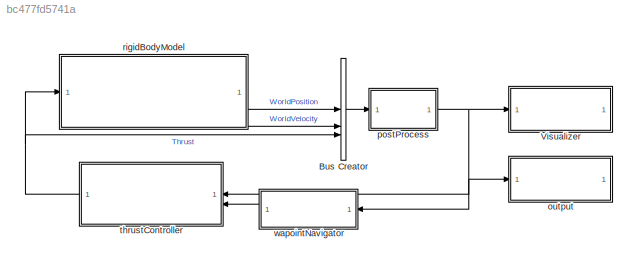
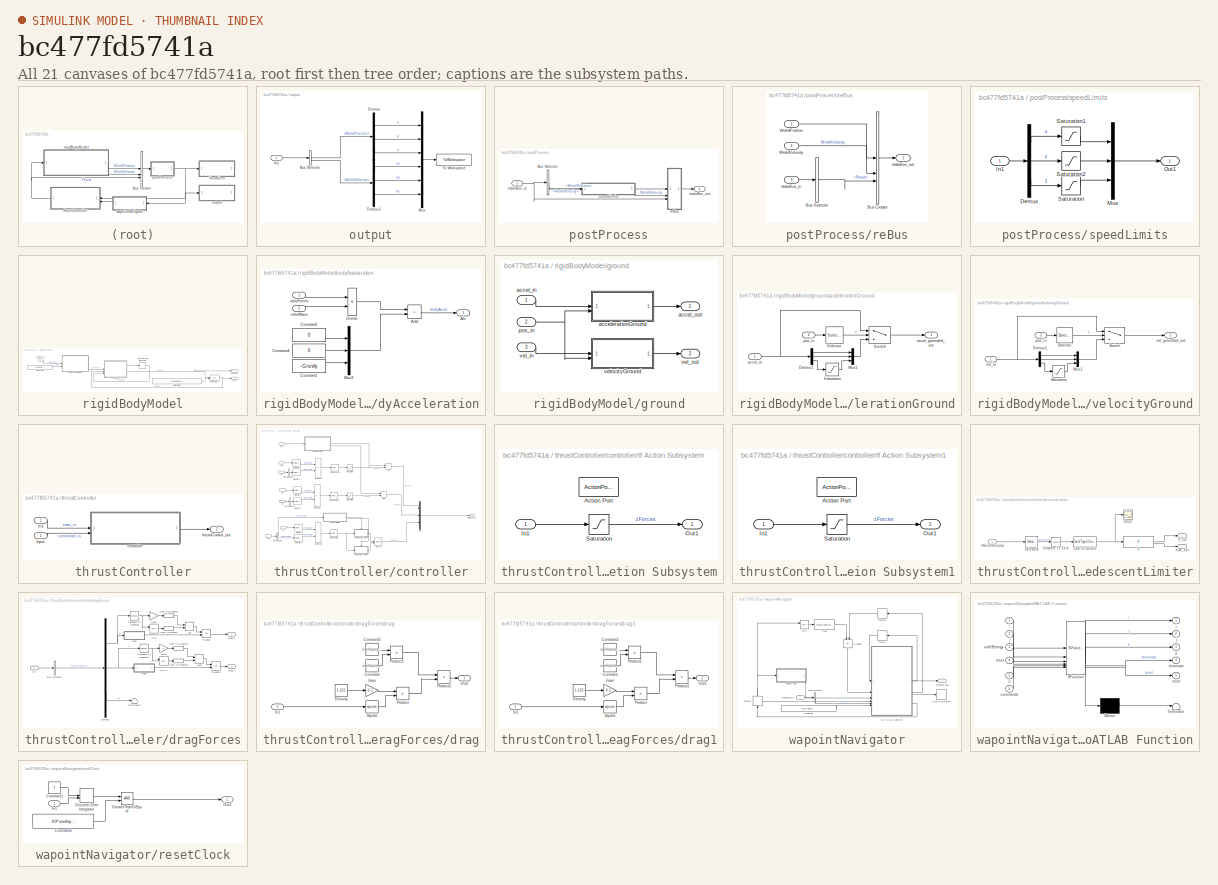
[diagram: thumbnail index - all 21 canvases of the model, root first then tree order]
MODEL slx_bc477fd5741a
KIND model
CONFIG AbsTol = auto
CONFIG EnableMultiTasking = on
CONFIG FixedStep = 0.001
CONFIG MaxStep = auto
CONFIG MinStep = auto
CONFIG PreLoadFcn = UserInputs;
CONFIG RelTol = 1e-3
CONFIG SampleTimeConstraint = Unconstrained
CONFIG SolverName = ode4
CONFIG StartTime = 0.0
CONFIG StopTime = 12000
BLOCK [BusCreator] Bus Creator
  DisplayOption = bar
  InheritFromInputs = on
  Inputs = 3
BLOCK [SubSystem] Visualizer
  ReferencedSubsystem = Visualizer
BLOCK [SubSystem] output
BLOCK [BusSelector] output/Bus Selector
  OutputSignals = WorldPosition,WorldVelocity
BLOCK [Demux] output/Demux
  Outputs = 3
BLOCK [Demux] output/Demux1
  Outputs = 3
BLOCK [Inport] output/In1
BLOCK [Mux] output/Mux
  DisplayOption = bar
  Inputs = 6
BLOCK [ToWorkspace] output/To Workspace
  FixptAsFi = on
  MaxDataPoints = inf
  SampleTime = 0.03
  VariableName = Pose
BLOCK [SubSystem] postProcess
BLOCK [BusSelector] postProcess/Bus Selector
  OutputSignals = WorldPosition,WorldVelocity
BLOCK [SubSystem] postProcess/reBus
  ShowPortLabels = none
BLOCK [BusCreator] postProcess/reBus/Bus Creator
  DisplayOption = bar
  InheritFromInputs = on
  Inputs = 3
  OutDataTypeStr = Bus: StateBus
BLOCK [BusSelector] postProcess/reBus/Bus Selector
  OutputSignals = Thrust
BLOCK [Inport] postProcess/reBus/WorldPostion
BLOCK [Inport] postProcess/reBus/WorldVelocity
  Port = 2
BLOCK [Inport] postProcess/reBus/stateBus_in
  Port = 3
BLOCK [Outport] postProcess/reBus/stateBus_out
  OutDataTypeStr = Bus: StateBus
BLOCK [SubSystem] postProcess/speedLimits
BLOCK [Demux] postProcess/speedLimits/Demux
  Outputs = 3
BLOCK [Inport] postProcess/speedLimits/In1
BLOCK [Mux] postProcess/speedLimits/Mux
  DisplayOption = bar
  Inputs = 3
BLOCK [Outport] postProcess/speedLimits/Out1
BLOCK [Saturate] postProcess/speedLimits/Saturation
  LowerLimit = -userInputs.dParams.maxClimb
  UpperLimit = userInputs.dParams.maxClimb
BLOCK [Saturate] postProcess/speedLimits/Saturation1
  LowerLimit = -inf
  UpperLimit = userInputs.dParams.vMax
BLOCK [Saturate] postProcess/speedLimits/Saturation2
  LowerLimit = -inf
  UpperLimit = userInputs.dParams.vMax
BLOCK [Inport] postProcess/stateBus_in
BLOCK [Outport] postProcess/stateBus_out
  OutDataTypeStr = Bus: StateBus
BLOCK [SubSystem] rigidBodyModel
BLOCK [DiscreteIntegrator] rigidBodyModel/Discrete-Time Integrator
  ICPrevOutput = DiscIntNeverNeededParam
  ICPrevScaledInput = DiscIntNeverNeededParam
  InitialConditionSetting = Auto
  SampleTime = -1
BLOCK [Inport] rigidBodyModel/F_aero (N)
BLOCK [Integrator] rigidBodyModel/Integrator3
  InitialConditionSource = external
BLOCK [Constant] rigidBodyModel/Mass (kg)
  Value = userInputs.dParams.m
BLOCK [Outport] rigidBodyModel/[vx vy vz]
  Port = 2
BLOCK [Outport] rigidBodyModel/[x y z]
BLOCK [SubSystem] rigidBodyModel/bodyAcceleration
BLOCK [Outport] rigidBodyModel/bodyAcceleration/Ab
BLOCK [Sum] rigidBodyModel/bodyAcceleration/Add
  IconShape = rectangular
BLOCK [Constant] rigidBodyModel/bodyAcceleration/Constant1
  Value = -Gravity
BLOCK [Constant] rigidBodyModel/bodyAcceleration/Constant3
  Value = 0
BLOCK [Constant] rigidBodyModel/bodyAcceleration/Constant4
  Value = 0
BLOCK [Product] rigidBodyModel/bodyAcceleration/Divide
  Inputs = */
BLOCK [Mux] rigidBodyModel/bodyAcceleration/Mux3
  DisplayOption = bar
  Inputs = 3
BLOCK [Inport] rigidBodyModel/bodyAcceleration/aeroForces
BLOCK [Inport] rigidBodyModel/bodyAcceleration/mfwfMass
  Port = 2
BLOCK [SubSystem] rigidBodyModel/ground
BLOCK [Inport] rigidBodyModel/ground/accel_in
BLOCK [Outport] rigidBodyModel/ground/accel_out
BLOCK [SubSystem] rigidBodyModel/ground/accelerationGround
BLOCK [Demux] rigidBodyModel/ground/accelerationGround/Demux1
  Outputs = 3
BLOCK [Mux] rigidBodyModel/ground/accelerationGround/Mux1
  DisplayOption = bar
  Inputs = 3
BLOCK [Saturate] rigidBodyModel/ground/accelerationGround/Saturation
  LowerLimit = 0
  UpperLimit = inf
BLOCK [Selector] rigidBodyModel/ground/accelerationGround/Selector
  IndexOptions = Index vector (dialog)
  Indices = [3]
  InputPortWidth = 3
  OutputSizes = 1
BLOCK [Switch] rigidBodyModel/ground/accelerationGround/Switch
  Criteria = u2 > Threshold
  InputSameDT = off
  SaturateOnIntegerOverflow = off
BLOCK [Outport] rigidBodyModel/ground/accelerationGround/accel_grounded_out
BLOCK [Inport] rigidBodyModel/ground/accelerationGround/accel_in
BLOCK [Inport] rigidBodyModel/ground/accelerationGround/pos_in
  Port = 2
BLOCK [Inport] rigidBodyModel/ground/pos_in
  Port = 2
BLOCK [Inport] rigidBodyModel/ground/vel_in
  Port = 3
BLOCK [Outport] rigidBodyModel/ground/vel_out
  Port = 2
BLOCK [SubSystem] rigidBodyModel/ground/velocityGround
BLOCK [Demux] rigidBodyModel/ground/velocityGround/Demux1
  Outputs = 3
BLOCK [Mux] rigidBodyModel/ground/velocityGround/Mux1
  DisplayOption = bar
  Inputs = 3
BLOCK [Saturate] rigidBodyModel/ground/velocityGround/Saturation
  LowerLimit = 0
  UpperLimit = inf
BLOCK [Selector] rigidBodyModel/ground/velocityGround/Selector
  IndexOptions = Index vector (dialog)
  Indices = [3]
  InputPortWidth = 3
  OutputSizes = 1
BLOCK [Switch] rigidBodyModel/ground/velocityGround/Switch
  Criteria = u2 > Threshold
  InputSameDT = off
  SaturateOnIntegerOverflow = off
BLOCK [Inport] rigidBodyModel/ground/velocityGround/pos_in
  Port = 2
BLOCK [Outport] rigidBodyModel/ground/velocityGround/vel_grounded_out
BLOCK [Inport] rigidBodyModel/ground/velocityGround/vel_in
BLOCK [Constant] rigidBodyModel/initialPosition
  Value = transpose(userInputs.commands.wpt_3D(1,:))
BLOCK [SubSystem] thrustController
BLOCK [Inport] thrustController/In1
  OutDataTypeStr = Bus: StateBus
BLOCK [Inport] thrustController/Input
  Port = 2
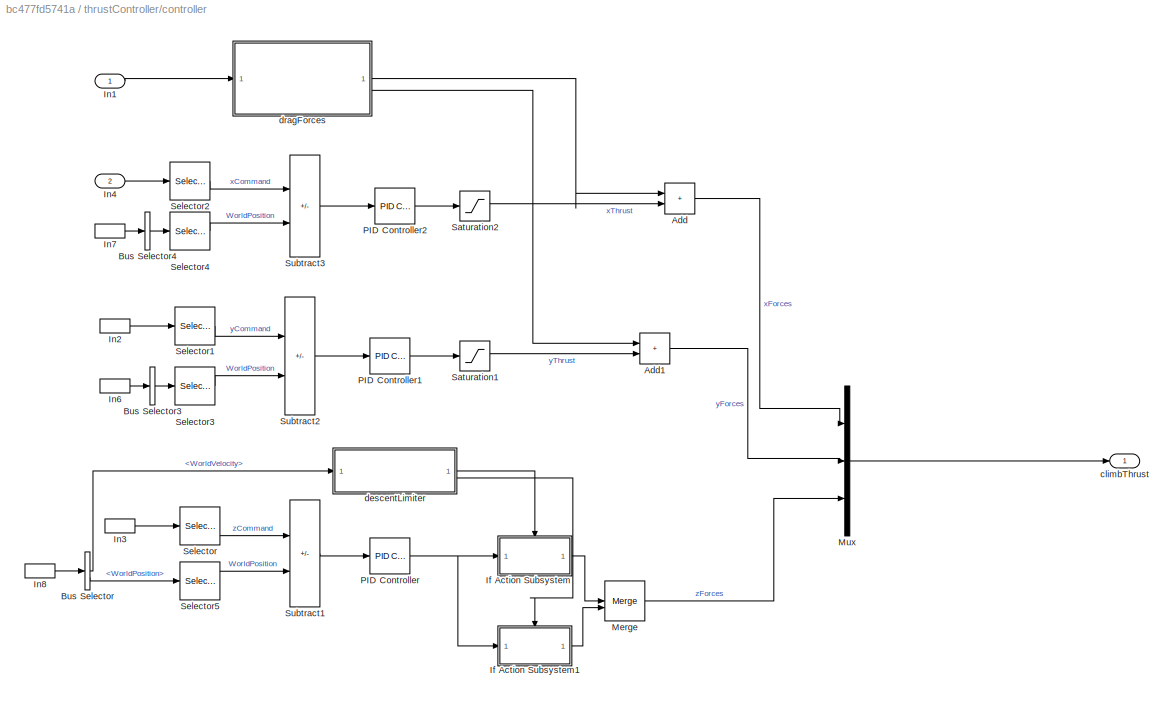
BLOCK [SubSystem] thrustController/controller
BLOCK [Sum] thrustController/controller/Add
  IconShape = rectangular
BLOCK [Sum] thrustController/controller/Add1
  IconShape = rectangular
BLOCK [BusSelector] thrustController/controller/Bus Selector
  OutputSignals = WorldVelocity,WorldPosition
BLOCK [BusSelector] thrustController/controller/Bus Selector3
  OutputAsBus = on
  OutputSignals = WorldPosition
BLOCK [BusSelector] thrustController/controller/Bus Selector4
  OutputAsBus = on
  OutputSignals = WorldPosition
BLOCK [SubSystem] thrustController/controller/If Action Subsystem
  TreatAsAtomicUnit = on
BLOCK [ActionPort] thrustController/controller/If Action Subsystem/Action Port
  ActionPortLabel = else
BLOCK [Inport] thrustController/controller/If Action Subsystem/In1
BLOCK [Outport] thrustController/controller/If Action Subsystem/Out1
BLOCK [Saturate] thrustController/controller/If Action Subsystem/Saturation
  LowerLimit = -userInputs.dParams.maxT
  UpperLimit = userInputs.dParams.maxT + Gravity* userInputs.dParams.m
BLOCK [SubSystem] thrustController/controller/If Action Subsystem1
  TreatAsAtomicUnit = on
BLOCK [ActionPort] thrustController/controller/If Action Subsystem1/Action Port
  ActionPortLabel = if(u1 > 0)
BLOCK [Inport] thrustController/controller/If Action Subsystem1/In1
BLOCK [Outport] thrustController/controller/If Action Subsystem1/Out1
BLOCK [Saturate] thrustController/controller/If Action Subsystem1/Saturation
  LowerLimit = (0.98)* ( Gravity* userInputs.dParams.m)
  UpperLimit = 10*userInputs.dParams.maxT + Gravity* userInputs.dParams.m
BLOCK [Inport] thrustController/controller/In1
BLOCK [InportShadow] thrustController/controller/In2
  Port = 2
BLOCK [InportShadow] thrustController/controller/In3
  Port = 2
BLOCK [Inport] thrustController/controller/In4
  Port = 2
BLOCK [InportShadow] thrustController/controller/In6
BLOCK [InportShadow] thrustController/controller/In7
BLOCK [InportShadow] thrustController/controller/In8
BLOCK [Merge] thrustController/controller/Merge
BLOCK [Mux] thrustController/controller/Mux
  DisplayOption = bar
  Inputs = 3
BLOCK [Reference] thrustController/controller/PID Controller  REF=slpidlib/PID Controller
  LibrarySourceBlock = simulink/Continuous/PID Controller
  SourceBlock = slpidlib/PID Controller
  SourceType = PID 1dof
BLOCK [Reference] thrustController/controller/PID Controller1  REF=slpidlib/PID Controller
  LibrarySourceBlock = simulink/Continuous/PID Controller
  SourceBlock = slpidlib/PID Controller
  SourceType = PID 1dof
BLOCK [Reference] thrustController/controller/PID Controller2  REF=slpidlib/PID Controller
  LibrarySourceBlock = simulink/Continuous/PID Controller
  SourceBlock = slpidlib/PID Controller
  SourceType = PID 1dof
BLOCK [Saturate] thrustController/controller/Saturation1
  LowerLimit = -userInputs.dParams.maxT
  UpperLimit = userInputs.dParams.maxT
BLOCK [Saturate] thrustController/controller/Saturation2
  LowerLimit = -userInputs.dParams.maxT
  UpperLimit = userInputs.dParams.maxT
BLOCK [Selector] thrustController/controller/Selector
  IndexOptions = Index vector (dialog)
  Indices = 3
  InputPortWidth = 3
  OutputSizes = 1
BLOCK [Selector] thrustController/controller/Selector1
  IndexOptions = Index vector (dialog)
  Indices = 2
  InputPortWidth = 3
  OutputSizes = 1
BLOCK [Selector] thrustController/controller/Selector2
  IndexOptions = Index vector (dialog)
  Indices = 1
  InputPortWidth = 3
  OutputSizes = 1
BLOCK [Selector] thrustController/controller/Selector3
  IndexOptions = Index vector (dialog)
  Indices = 2
  InputPortWidth = 3
  OutputSizes = 1
BLOCK [Selector] thrustController/controller/Selector4
  IndexOptions = Index vector (dialog)
  Indices = 1
  InputPortWidth = 3
  OutputSizes = 1
BLOCK [Selector] thrustController/controller/Selector5
  IndexOptions = Index vector (dialog)
  Indices = 3
  InputPortWidth = 3
  OutputSizes = 1
BLOCK [Sum] thrustController/controller/Subtract1
  IconShape = rectangular
  Inputs = +-
BLOCK [Sum] thrustController/controller/Subtract2
  IconShape = rectangular
  Inputs = +-
BLOCK [Sum] thrustController/controller/Subtract3
  IconShape = rectangular
  Inputs = +-
BLOCK [Outport] thrustController/controller/climbThrust
BLOCK [SubSystem] thrustController/controller/descentLimiter
BLOCK [Inport] thrustController/controller/descentLimiter/<WorldVelocity>
BLOCK [DataTypeConversion] thrustController/controller/descentLimiter/Cast To Double
  OutDataTypeStr = double
  RndMeth = Floor
  SaturateOnIntegerOverflow = off
BLOCK [Reference] thrustController/controller/descentLimiter/Compare To Zero  REF=simulink/Logic and Bit
Operations/Compare
To Zero
  SourceBlock = simulink/Logic and Bit\nOperations/Compare\nTo Zero
  SourceType = Compare To Zero
BLOCK [If] thrustController/controller/descentLimiter/If
BLOCK [Scope] thrustController/controller/descentLimiter/Scope
  Floating = off
  NumInputPorts = 1
  ScopeSpecificationString = Simulink.scopes.TimeScopeBlockCfg('CurrentConfiguration', extmgr.ConfigurationSet(extmgr.Configuration('Core','General UI',true),extmgr.Configuration('Core','Source UI',true),extmgr.Configuration('Sources','WiredSimulink',true,'DataLoggingVariableName','ScopeData6'),extmgr.Configuration('Visuals','Time Domain',true,'SerializedDisplays',{struct('MinYLimReal','-0.125','MaxYLimReal','1.125','YLabelRe...<+1386ch>
BLOCK [Selector] thrustController/controller/descentLimiter/Selector6
  IndexOptions = Index vector (dialog)
  Indices = 3
  InputPortWidth = 3
  OutputSizes = 1
BLOCK [Outport] thrustController/controller/descentLimiter/else_out
BLOCK [Outport] thrustController/controller/descentLimiter/if_out
  Port = 2
BLOCK [SubSystem] thrustController/controller/dragForces
BLOCK [Sum] thrustController/controller/dragForces/Add
  IconShape = rectangular
BLOCK [Sum] thrustController/controller/dragForces/Add1
  IconShape = rectangular
BLOCK [BusSelector] thrustController/controller/dragForces/Bus Selector2
  OutputSignals = WorldVelocity
BLOCK [DataTypeConversion] thrustController/controller/dragForces/Cast To Double
  OutDataTypeStr = double
  RndMeth = Floor
  SaturateOnIntegerOverflow = off
BLOCK [DataTypeConversion] thrustController/controller/dragForces/Cast To Double1
  OutDataTypeStr = double
  RndMeth = Floor
  SaturateOnIntegerOverflow = off
BLOCK [DataTypeConversion] thrustController/controller/dragForces/Cast To Double2
  OutDataTypeStr = double
  RndMeth = Floor
  SaturateOnIntegerOverflow = off
BLOCK [DataTypeConversion] thrustController/controller/dragForces/Cast To Double3
  OutDataTypeStr = double
  RndMeth = Floor
  SaturateOnIntegerOverflow = off
BLOCK [Reference] thrustController/controller/dragForces/Compare To Constant  REF=simulink/Logic and Bit
Operations/Compare
To Constant
  SourceBlock = simulink/Logic and Bit\nOperations/Compare\nTo Constant
  SourceType = Compare To Constant
BLOCK [Reference] thrustController/controller/dragForces/Compare To Constant1  REF=simulink/Logic and Bit
Operations/Compare
To Constant
  SourceBlock = simulink/Logic and Bit\nOperations/Compare\nTo Constant
  SourceType = Compare To Constant
BLOCK [Demux] thrustController/controller/dragForces/Demux1
  Outputs = 3
BLOCK [Gain] thrustController/controller/dragForces/Gain
  Gain = -1
BLOCK [Gain] thrustController/controller/dragForces/Gain1
  Gain = -1
BLOCK [Inport] thrustController/controller/dragForces/In1
BLOCK [Logic] thrustController/controller/dragForces/NOT
  AllPortsSameDT = off
  IconShape = distinctive
  Operator = NOT
  OutDataTypeStr = boolean
BLOCK [Logic] thrustController/controller/dragForces/NOT1
  AllPortsSameDT = off
  IconShape = distinctive
  Operator = NOT
  OutDataTypeStr = boolean
BLOCK [Product] thrustController/controller/dragForces/Product
  NameLocation = right
BLOCK [Product] thrustController/controller/dragForces/Product1
  NameLocation = right
BLOCK [Terminator] thrustController/controller/dragForces/Terminator2
BLOCK [SubSystem] thrustController/controller/dragForces/drag
BLOCK [Constant] thrustController/controller/dragForces/drag/Constant
  Value = userInputs.dParams.dragCoef
BLOCK [Constant] thrustController/controller/dragForces/drag/Constant2
  Value = userInputs.dParams.Aref
BLOCK [Constant] thrustController/controller/dragForces/drag/Density
  Value = 1.225
BLOCK [Gain] thrustController/controller/dragForces/drag/Gain
  Gain = 0.5
BLOCK [Inport] thrustController/controller/dragForces/drag/In1
BLOCK [Outport] thrustController/controller/dragForces/drag/Out1
BLOCK [Product] thrustController/controller/dragForces/drag/Product
BLOCK [Product] thrustController/controller/dragForces/drag/Product1
BLOCK [Product] thrustController/controller/dragForces/drag/Product2
BLOCK [Math] thrustController/controller/dragForces/drag/Square
  Operator = square
BLOCK [SubSystem] thrustController/controller/dragForces/drag1
BLOCK [Constant] thrustController/controller/dragForces/drag1/Constant
  Value = userInputs.dParams.dragCoef
BLOCK [Constant] thrustController/controller/dragForces/drag1/Constant2
  Value = userInputs.dParams.Aref
BLOCK [Constant] thrustController/controller/dragForces/drag1/Density
  Value = 1.225
BLOCK [Gain] thrustController/controller/dragForces/drag1/Gain
  Gain = 0.5
BLOCK [Inport] thrustController/controller/dragForces/drag1/In1
BLOCK [Outport] thrustController/controller/dragForces/drag1/Out1
BLOCK [Product] thrustController/controller/dragForces/drag1/Product
BLOCK [Product] thrustController/controller/dragForces/drag1/Product1
BLOCK [Product] thrustController/controller/dragForces/drag1/Product2
BLOCK [Math] thrustController/controller/dragForces/drag1/Square
  Operator = square
BLOCK [Outport] thrustController/controller/dragForces/drag_x
BLOCK [Outport] thrustController/controller/dragForces/drag_y
  Port = 2
BLOCK [Outport] thrustController/thrustControl_out
BLOCK [SubSystem] wapointNavigator
BLOCK [BusSelector] wapointNavigator/Bus Selector
  OutputSignals = WorldPosition
BLOCK [DataTypeConversion] wapointNavigator/Cast
  OutDataTypeStr = double
  RndMeth = Floor
  SaturateOnIntegerOverflow = off
BLOCK [Constant] wapointNavigator/Constant
  Value = userInputs.commands.wpt_3D
BLOCK [Delay] wapointNavigator/Delay
  DelayLength = 1
  InitialCondition = 2
  InputPortMap = u0
  NameLocation = top
BLOCK [Delay] wapointNavigator/Delay1
  DelayLength = 1
  InputPortMap = u0
  NameLocation = right
BLOCK [Delay] wapointNavigator/Delay2
  DelayLength = 1
  InitialCondition = 0
  InputPortMap = u0
  NameLocation = top
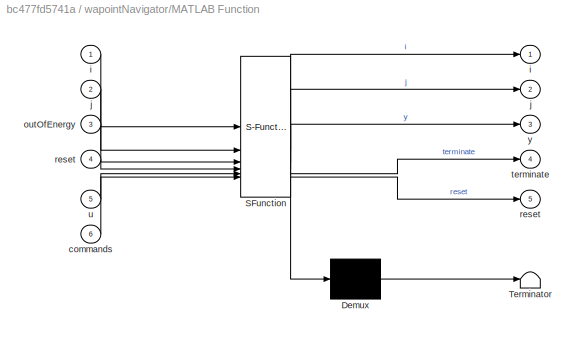
BLOCK [SubSystem] wapointNavigator/MATLAB Function
  ErrorFcn = Stateflow.Translate.translate
  PermitHierarchicalResolution = ExplicitOnly
  RTWSystemCode = Inline
  SFBlockType = MATLAB Function
  TreatAsAtomicUnit = on
BLOCK [Demux] wapointNavigator/MATLAB Function/ Demux 
  Outputs = 1
BLOCK [S-Function] wapointNavigator/MATLAB Function/ SFunction 
  EnableBusSupport = on
  FunctionName = sf_sfun
  PortCounts = [6 6]
  SFcnIsStateOwnerBlock = off
  SFunctionDeploymentMode = off
  Tag = Stateflow S-Function 3
BLOCK [Terminator] wapointNavigator/MATLAB Function/ Terminator 
BLOCK [Inport] wapointNavigator/MATLAB Function/commands
  Port = 6
BLOCK [Outport] wapointNavigator/MATLAB Function/i
BLOCK [Inport] wapointNavigator/MATLAB Function/i 
BLOCK [Outport] wapointNavigator/MATLAB Function/j
  Port = 2
BLOCK [Inport] wapointNavigator/MATLAB Function/j 
  Port = 2
BLOCK [Inport] wapointNavigator/MATLAB Function/outOfEnergy
  Port = 3
BLOCK [Outport] wapointNavigator/MATLAB Function/reset
  Port = 5
BLOCK [Inport] wapointNavigator/MATLAB Function/reset 
  Port = 4
BLOCK [Outport] wapointNavigator/MATLAB Function/terminate
  Port = 4
BLOCK [Inport] wapointNavigator/MATLAB Function/u
  Port = 5
BLOCK [Outport] wapointNavigator/MATLAB Function/y
  Port = 3
BLOCK [Logic] wapointNavigator/NOT
  AllPortsSameDT = off
  IconShape = distinctive
  Operator = NOT
  OutDataTypeStr = boolean
BLOCK [Product] wapointNavigator/Product
  NameLocation = left
BLOCK [Stop] wapointNavigator/Stop Simulation
BLOCK [SubSystem] wapointNavigator/resetClock
BLOCK [Constant] wapointNavigator/resetClock/Constant1
BLOCK [Constant] wapointNavigator/resetClock/Constant2
  Value = 0.9*userInputs.dParams.opsTime
BLOCK [DiscreteIntegrator] wapointNavigator/resetClock/Discrete-Time Integrator
  ExternalReset = rising
  ICPrevOutput = DiscIntNeverNeededParam
  ICPrevScaledInput = DiscIntNeverNeededParam
  InitialConditionSetting = Auto
  SampleTime = -1
BLOCK [RelationalOperator] wapointNavigator/resetClock/GreaterThanOrEqual
  InputSameDT = off
  OutDataTypeStr = boolean
  RndMeth = Simplest
BLOCK [Inport] wapointNavigator/resetClock/In1
BLOCK [Outport] wapointNavigator/resetClock/Out1
BLOCK [Inport] wapointNavigator/stateBus_in
  OutDataTypeStr = Bus: StateBus
BLOCK [Outport] wapointNavigator/waypoint_out
LINE Bus Creator:1 -> postProcess:1
LINE output/Bus Selector:1 -> output/Demux:1
LINE output/Bus Selector:2 -> output/Demux1:1
LINE output/Demux1:1 -> output/Mux:4
LINE output/Demux1:2 -> output/Mux:5
LINE output/Demux1:3 -> output/Mux:6
LINE output/Demux:1 -> output/Mux:1
LINE output/Demux:2 -> output/Mux:2
LINE output/Demux:3 -> output/Mux:3
LINE output/In1:1 -> output/Bus Selector:1
LINE output/Mux:1 -> output/To Workspace:1
LINE postProcess/Bus Selector:1 -> postProcess/reBus:1
LINE postProcess/Bus Selector:2 -> postProcess/speedLimits:1
LINE postProcess/reBus/Bus Creator:1 -> postProcess/reBus/stateBus_out:1
LINE postProcess/reBus/Bus Selector:1 -> postProcess/reBus/Bus Creator:3
LINE postProcess/reBus/WorldPostion:1 -> postProcess/reBus/Bus Creator:1
LINE postProcess/reBus/WorldVelocity:1 -> postProcess/reBus/Bus Creator:2
LINE postProcess/reBus/stateBus_in:1 -> postProcess/reBus/Bus Selector:1
LINE postProcess/reBus:1 -> postProcess/stateBus_out:1
LINE postProcess/speedLimits/Demux:1 -> postProcess/speedLimits/Saturation1:1
LINE postProcess/speedLimits/Demux:2 -> postProcess/speedLimits/Saturation2:1
LINE postProcess/speedLimits/Demux:3 -> postProcess/speedLimits/Saturation:1
LINE postProcess/speedLimits/In1:1 -> postProcess/speedLimits/Demux:1
LINE postProcess/speedLimits/Mux:1 -> postProcess/speedLimits/Out1:1
LINE postProcess/speedLimits/Saturation1:1 -> postProcess/speedLimits/Mux:1
LINE postProcess/speedLimits/Saturation2:1 -> postProcess/speedLimits/Mux:2
LINE postProcess/speedLimits/Saturation:1 -> postProcess/speedLimits/Mux:3
LINE postProcess/speedLimits:1 -> postProcess/reBus:2
NET postProcess/stateBus_in:1 -> postProcess/Bus Selector:1, postProcess/reBus:3
NET postProcess:1 -> Visualizer:1, output:1, thrustController:1, wapointNavigator:1
LINE rigidBodyModel/Discrete-Time Integrator:1 -> rigidBodyModel/ground:3
LINE rigidBodyModel/F_aero (N):1 -> rigidBodyModel/bodyAcceleration:1
NET rigidBodyModel/Integrator3:1 -> rigidBodyModel/[x y z]:1, rigidBodyModel/ground:2
LINE rigidBodyModel/Mass (kg):1 -> rigidBodyModel/bodyAcceleration:2
LINE rigidBodyModel/bodyAcceleration/Add:1 -> rigidBodyModel/bodyAcceleration/Ab:1
LINE rigidBodyModel/bodyAcceleration/Constant1:1 -> rigidBodyModel/bodyAcceleration/Mux3:3
LINE rigidBodyModel/bodyAcceleration/Constant3:1 -> rigidBodyModel/bodyAcceleration/Mux3:1
LINE rigidBodyModel/bodyAcceleration/Constant4:1 -> rigidBodyModel/bodyAcceleration/Mux3:2
LINE rigidBodyModel/bodyAcceleration/Divide:1 -> rigidBodyModel/bodyAcceleration/Add:1
LINE rigidBodyModel/bodyAcceleration/Mux3:1 -> rigidBodyModel/bodyAcceleration/Add:2
LINE rigidBodyModel/bodyAcceleration/aeroForces:1 -> rigidBodyModel/bodyAcceleration/Divide:1
LINE rigidBodyModel/bodyAcceleration/mfwfMass:1 -> rigidBodyModel/bodyAcceleration/Divide:2
LINE rigidBodyModel/bodyAcceleration:1 -> rigidBodyModel/ground:1
LINE rigidBodyModel/ground/accel_in:1 -> rigidBodyModel/ground/accelerationGround:1
LINE rigidBodyModel/ground/accelerationGround/Demux1:1 -> rigidBodyModel/ground/accelerationGround/Mux1:1
LINE rigidBodyModel/ground/accelerationGround/Demux1:2 -> rigidBodyModel/ground/accelerationGround/Mux1:2
LINE rigidBodyModel/ground/accelerationGround/Demux1:3 -> rigidBodyModel/ground/accelerationGround/Saturation:1
LINE rigidBodyModel/ground/accelerationGround/Mux1:1 -> rigidBodyModel/ground/accelerationGround/Switch:3
LINE rigidBodyModel/ground/accelerationGround/Saturation:1 -> rigidBodyModel/ground/accelerationGround/Mux1:3
LINE rigidBodyModel/ground/accelerationGround/Selector:1 -> rigidBodyModel/ground/accelerationGround/Switch:2
LINE rigidBodyModel/ground/accelerationGround/Switch:1 -> rigidBodyModel/ground/accelerationGround/accel_grounded_out:1
NET rigidBodyModel/ground/accelerationGround/accel_in:1 -> rigidBodyModel/ground/accelerationGround/Demux1:1, rigidBodyModel/ground/accelerationGround/Switch:1
LINE rigidBodyModel/ground/accelerationGround/pos_in:1 -> rigidBodyModel/ground/accelerationGround/Selector:1
LINE rigidBodyModel/ground/accelerationGround:1 -> rigidBodyModel/ground/accel_out:1
NET rigidBodyModel/ground/pos_in:1 -> rigidBodyModel/ground/accelerationGround:2, rigidBodyModel/ground/velocityGround:2
LINE rigidBodyModel/ground/vel_in:1 -> rigidBodyModel/ground/velocityGround:1
LINE rigidBodyModel/ground/velocityGround/Demux1:1 -> rigidBodyModel/ground/velocityGround/Mux1:1
LINE rigidBodyModel/ground/velocityGround/Demux1:2 -> rigidBodyModel/ground/velocityGround/Mux1:2
LINE rigidBodyModel/ground/velocityGround/Demux1:3 -> rigidBodyModel/ground/velocityGround/Saturation:1
LINE rigidBodyModel/ground/velocityGround/Mux1:1 -> rigidBodyModel/ground/velocityGround/Switch:3
LINE rigidBodyModel/ground/velocityGround/Saturation:1 -> rigidBodyModel/ground/velocityGround/Mux1:3
LINE rigidBodyModel/ground/velocityGround/Selector:1 -> rigidBodyModel/ground/velocityGround/Switch:2
LINE rigidBodyModel/ground/velocityGround/Switch:1 -> rigidBodyModel/ground/velocityGround/vel_grounded_out:1
LINE rigidBodyModel/ground/velocityGround/pos_in:1 -> rigidBodyModel/ground/velocityGround/Selector:1
NET rigidBodyModel/ground/velocityGround/vel_in:1 -> rigidBodyModel/ground/velocityGround/Demux1:1, rigidBodyModel/ground/velocityGround/Switch:1
LINE rigidBodyModel/ground/velocityGround:1 -> rigidBodyModel/ground/vel_out:1
LINE rigidBodyModel/ground:1 -> rigidBodyModel/Discrete-Time Integrator:1
NET rigidBodyModel/ground:2 -> rigidBodyModel/Integrator3:1, rigidBodyModel/[vx vy vz]:1
LINE rigidBodyModel/initialPosition:1 -> rigidBodyModel/Integrator3:2
LINE rigidBodyModel:1 -> Bus Creator:1
LINE rigidBodyModel:2 -> Bus Creator:2
LINE thrustController/In1:1 -> thrustController/controller:1
LINE thrustController/Input:1 -> thrustController/controller:2
LINE thrustController/controller/Add1:1 -> thrustController/controller/Mux:2
LINE thrustController/controller/Add:1 -> thrustController/controller/Mux:1
LINE thrustController/controller/Bus Selector3:1 -> thrustController/controller/Selector3:1
LINE thrustController/controller/Bus Selector4:1 -> thrustController/controller/Selector4:1
LINE thrustController/controller/Bus Selector:1 -> thrustController/controller/descentLimiter:1
LINE thrustController/controller/Bus Selector:2 -> thrustController/controller/Selector5:1
LINE thrustController/controller/If Action Subsystem/In1:1 -> thrustController/controller/If Action Subsystem/Saturation:1
LINE thrustController/controller/If Action Subsystem/Saturation:1 -> thrustController/controller/If Action Subsystem/Out1:1
LINE thrustController/controller/If Action Subsystem1/In1:1 -> thrustController/controller/If Action Subsystem1/Saturation:1
LINE thrustController/controller/If Action Subsystem1/Saturation:1 -> thrustController/controller/If Action Subsystem1/Out1:1
LINE thrustController/controller/If Action Subsystem1:1 -> thrustController/controller/Merge:2
LINE thrustController/controller/If Action Subsystem:1 -> thrustController/controller/Merge:1
LINE thrustController/controller/In1:1 -> thrustController/controller/dragForces:1
LINE thrustController/controller/In2:1 -> thrustController/controller/Selector1:1
LINE thrustController/controller/In3:1 -> thrustController/controller/Selector:1
LINE thrustController/controller/In4:1 -> thrustController/controller/Selector2:1
LINE thrustController/controller/In6:1 -> thrustController/controller/Bus Selector3:1
LINE thrustController/controller/In7:1 -> thrustController/controller/Bus Selector4:1
LINE thrustController/controller/In8:1 -> thrustController/controller/Bus Selector:1
LINE thrustController/controller/Merge:1 -> thrustController/controller/Mux:3
LINE thrustController/controller/Mux:1 -> thrustController/controller/climbThrust:1
LINE thrustController/controller/PID Controller1:1 -> thrustController/controller/Saturation1:1
LINE thrustController/controller/PID Controller2:1 -> thrustController/controller/Saturation2:1
NET thrustController/controller/PID Controller:1 -> thrustController/controller/If Action Subsystem1:1, thrustController/controller/If Action Subsystem:1
LINE thrustController/controller/Saturation1:1 -> thrustController/controller/Add1:2
LINE thrustController/controller/Saturation2:1 -> thrustController/controller/Add:2
LINE thrustController/controller/Selector1:1 -> thrustController/controller/Subtract2:1
LINE thrustController/controller/Selector2:1 -> thrustController/controller/Subtract3:1
LINE thrustController/controller/Selector3:1 -> thrustController/controller/Subtract2:2
LINE thrustController/controller/Selector4:1 -> thrustController/controller/Subtract3:2
LINE thrustController/controller/Selector5:1 -> thrustController/controller/Subtract1:2
LINE thrustController/controller/Selector:1 -> thrustController/controller/Subtract1:1
LINE thrustController/controller/Subtract1:1 -> thrustController/controller/PID Controller:1
LINE thrustController/controller/Subtract2:1 -> thrustController/controller/PID Controller1:1
LINE thrustController/controller/Subtract3:1 -> thrustController/controller/PID Controller2:1
LINE thrustController/controller/descentLimiter/<WorldVelocity>:1 -> thrustController/controller/descentLimiter/Selector6:1
NET thrustController/controller/descentLimiter/Cast To Double:1 -> thrustController/controller/descentLimiter/If:1, thrustController/controller/descentLimiter/Scope:1
LINE thrustController/controller/descentLimiter/Compare To Zero:1 -> thrustController/controller/descentLimiter/Cast To Double:1
LINE thrustController/controller/descentLimiter/If:1 -> thrustController/controller/descentLimiter/if_out:1
LINE thrustController/controller/descentLimiter/If:2 -> thrustController/controller/descentLimiter/else_out:1
LINE thrustController/controller/descentLimiter/Selector6:1 -> thrustController/controller/descentLimiter/Compare To Zero:1
LINE thrustController/controller/descentLimiter:1 -> thrustController/controller/If Action Subsystem:ifaction
LINE thrustController/controller/descentLimiter:2 -> thrustController/controller/If Action Subsystem1:ifaction
LINE thrustController/controller/dragForces/Add1:1 -> thrustController/controller/dragForces/Product1:1
LINE thrustController/controller/dragForces/Add:1 -> thrustController/controller/dragForces/Product:1
LINE thrustController/controller/dragForces/Bus Selector2:1 -> thrustController/controller/dragForces/Demux1:1
LINE thrustController/controller/dragForces/Cast To Double1:1 -> thrustController/controller/dragForces/Add:1
LINE thrustController/controller/dragForces/Cast To Double2:1 -> thrustController/controller/dragForces/Add1:2
LINE thrustController/controller/dragForces/Cast To Double3:1 -> thrustController/controller/dragForces/Add1:1
LINE thrustController/controller/dragForces/Cast To Double:1 -> thrustController/controller/dragForces/Add:2
NET thrustController/controller/dragForces/Compare To Constant1:1 -> thrustController/controller/dragForces/Gain1:1, thrustController/controller/dragForces/NOT1:1
NET thrustController/controller/dragForces/Compare To Constant:1 -> thrustController/controller/dragForces/Gain:1, thrustController/controller/dragForces/NOT:1
NET thrustController/controller/dragForces/Demux1:1 -> thrustController/controller/dragForces/Compare To Constant:1, thrustController/controller/dragForces/drag:1
NET thrustController/controller/dragForces/Demux1:2 -> thrustController/controller/dragForces/Compare To Constant1:1, thrustController/controller/dragForces/drag1:1
LINE thrustController/controller/dragForces/Demux1:3 -> thrustController/controller/dragForces/Terminator2:1
LINE thrustController/controller/dragForces/Gain1:1 -> thrustController/controller/dragForces/Cast To Double3:1
LINE thrustController/controller/dragForces/Gain:1 -> thrustController/controller/dragForces/Cast To Double1:1
LINE thrustController/controller/dragForces/In1:1 -> thrustController/controller/dragForces/Bus Selector2:1
LINE thrustController/controller/dragForces/NOT1:1 -> thrustController/controller/dragForces/Cast To Double2:1
LINE thrustController/controller/dragForces/NOT:1 -> thrustController/controller/dragForces/Cast To Double:1
LINE thrustController/controller/dragForces/Product1:1 -> thrustController/controller/dragForces/drag_y:1
LINE thrustController/controller/dragForces/Product:1 -> thrustController/controller/dragForces/drag_x:1
LINE thrustController/controller/dragForces/drag/Constant2:1 -> thrustController/controller/dragForces/drag/Product1:1
LINE thrustController/controller/dragForces/drag/Constant:1 -> thrustController/controller/dragForces/drag/Product1:2
LINE thrustController/controller/dragForces/drag/Density:1 -> thrustController/controller/dragForces/drag/Gain:1
LINE thrustController/controller/dragForces/drag/Gain:1 -> thrustController/controller/dragForces/drag/Product:1
LINE thrustController/controller/dragForces/drag/In1:1 -> thrustController/controller/dragForces/drag/Square:1
LINE thrustController/controller/dragForces/drag/Product1:1 -> thrustController/controller/dragForces/drag/Product2:1
LINE thrustController/controller/dragForces/drag/Product2:1 -> thrustController/controller/dragForces/drag/Out1:1
LINE thrustController/controller/dragForces/drag/Product:1 -> thrustController/controller/dragForces/drag/Product2:2
LINE thrustController/controller/dragForces/drag/Square:1 -> thrustController/controller/dragForces/drag/Product:2
LINE thrustController/controller/dragForces/drag1/Constant2:1 -> thrustController/controller/dragForces/drag1/Product1:1
LINE thrustController/controller/dragForces/drag1/Constant:1 -> thrustController/controller/dragForces/drag1/Product1:2
LINE thrustController/controller/dragForces/drag1/Density:1 -> thrustController/controller/dragForces/drag1/Gain:1
LINE thrustController/controller/dragForces/drag1/Gain:1 -> thrustController/controller/dragForces/drag1/Product:1
LINE thrustController/controller/dragForces/drag1/In1:1 -> thrustController/controller/dragForces/drag1/Square:1
LINE thrustController/controller/dragForces/drag1/Product1:1 -> thrustController/controller/dragForces/drag1/Product2:1
LINE thrustController/controller/dragForces/drag1/Product2:1 -> thrustController/controller/dragForces/drag1/Out1:1
LINE thrustController/controller/dragForces/drag1/Product:1 -> thrustController/controller/dragForces/drag1/Product2:2
LINE thrustController/controller/dragForces/drag1/Square:1 -> thrustController/controller/dragForces/drag1/Product:2
LINE thrustController/controller/dragForces/drag1:1 -> thrustController/controller/dragForces/Product1:2
LINE thrustController/controller/dragForces/drag:1 -> thrustController/controller/dragForces/Product:2
LINE thrustController/controller/dragForces:1 -> thrustController/controller/Add:1
LINE thrustController/controller/dragForces:2 -> thrustController/controller/Add1:1
LINE thrustController/controller:1 -> thrustController/thrustControl_out:1
NET thrustController:1 -> Bus Creator:3, rigidBodyModel:1
LINE wapointNavigator/Bus Selector:1 -> wapointNavigator/MATLAB Function:5
LINE wapointNavigator/Cast:1 -> wapointNavigator/Product:1
LINE wapointNavigator/Constant:1 -> wapointNavigator/MATLAB Function:6
NET wapointNavigator/Delay1:1 -> wapointNavigator/MATLAB Function:4, wapointNavigator/NOT:1, wapointNavigator/resetClock:1
LINE wapointNavigator/Delay2:1 -> wapointNavigator/Product:2
LINE wapointNavigator/Delay:1 -> wapointNavigator/MATLAB Function:1
LINE wapointNavigator/MATLAB Function:1 -> wapointNavigator/Delay:1
LINE wapointNavigator/MATLAB Function:2 -> wapointNavigator/Delay2:1
LINE wapointNavigator/MATLAB Function:3 -> wapointNavigator/waypoint_out:1
LINE wapointNavigator/MATLAB Function:4 -> wapointNavigator/Stop Simulation:1
LINE wapointNavigator/MATLAB Function:5 -> wapointNavigator/Delay1:1
LINE wapointNavigator/NOT:1 -> wapointNavigator/Cast:1
LINE wapointNavigator/Product:1 -> wapointNavigator/MATLAB Function:2
LINE wapointNavigator/resetClock/Constant1:1 -> wapointNavigator/resetClock/Discrete-Time Integrator:1
LINE wapointNavigator/resetClock/Constant2:1 -> wapointNavigator/resetClock/GreaterThanOrEqual:2
LINE wapointNavigator/resetClock/Discrete-Time Integrator:1 -> wapointNavigator/resetClock/GreaterThanOrEqual:1
LINE wapointNavigator/resetClock/GreaterThanOrEqual:1 -> wapointNavigator/resetClock/Out1:1
LINE wapointNavigator/resetClock/In1:1 -> wapointNavigator/resetClock/Discrete-Time Integrator:2
LINE wapointNavigator/resetClock:1 -> wapointNavigator/MATLAB Function:3
LINE wapointNavigator/stateBus_in:1 -> wapointNavigator/Bus Selector:1
LINE wapointNavigator:1 -> thrustController:2
note: NET lines group one-source signal fan-out (src -> all destinations, sorted); 1:1 wires keep LINE
CHART wapointNavigator/MATLAB Function states=1 transitions=1
  STATE_LABEL 'eML_blk_kernel()'
  STATE_LABEL 'SCRIPT:\nfunction [i, j, y,terminate, reset] = waypoints(i, j, outOfEnergy, reset, u, commands)\n    xFlag = 0;\n    yFlag = 0;\n    zFlag = 0;\n    terminate = 0;\n\n    if outOfEnergy == 0\n        reset = 0;\n        if (u(1) >= commands(i,1)-5 && u(1) < commands(i,1)+5)\n           xFlag = 1;\n        end\n    \n        if(u(2) >= commands(i,2)-5 && u(2) < commands(i,2)+5)\n            yFlag = 1;\n        en...<+1508ch>'
CHART  states=0 transitions=0
